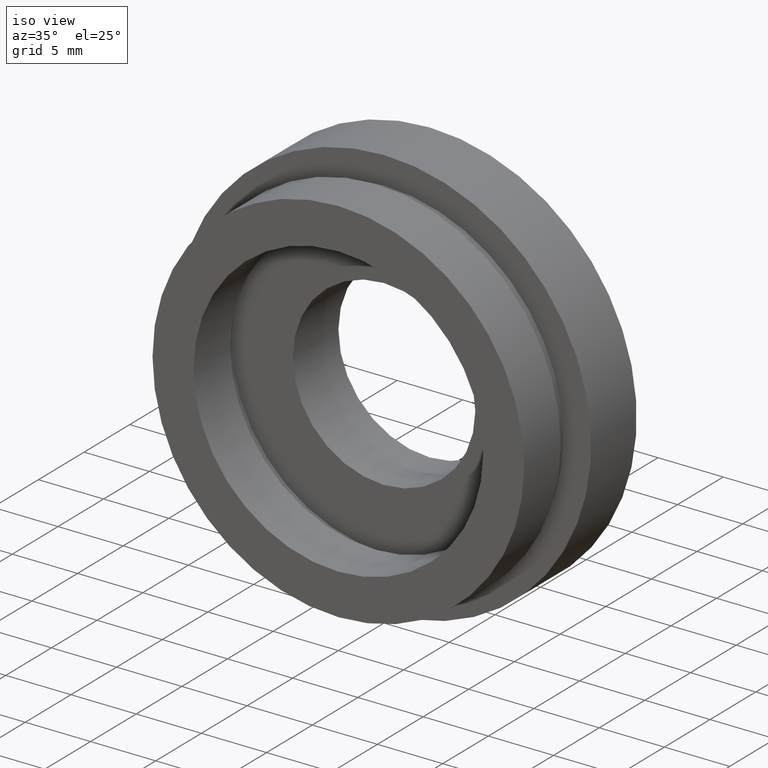
[diagram: clean part render]
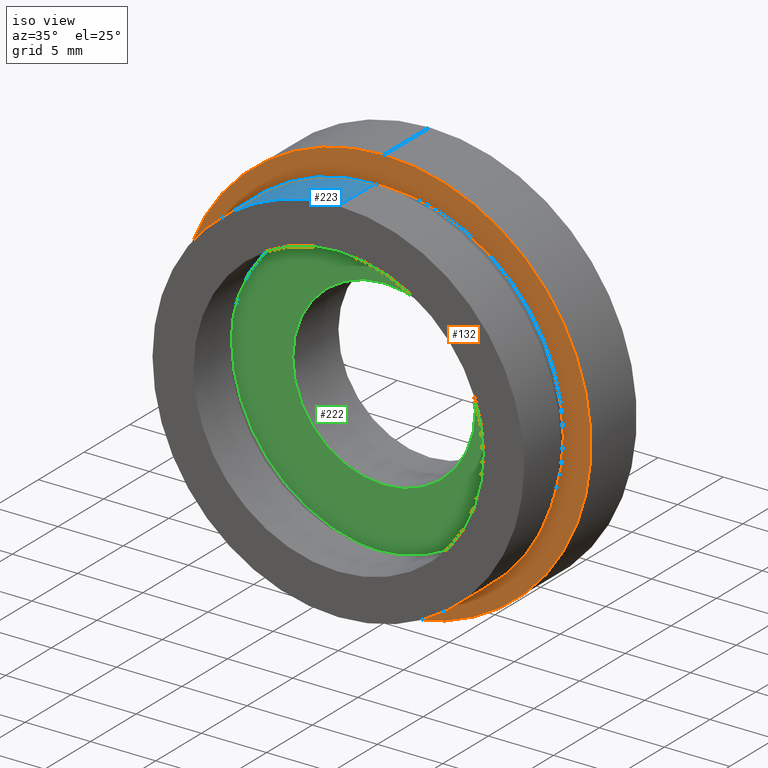
[diagram: same view with three faces highlighted in distinct colors, each labeled with its STEP entity id]
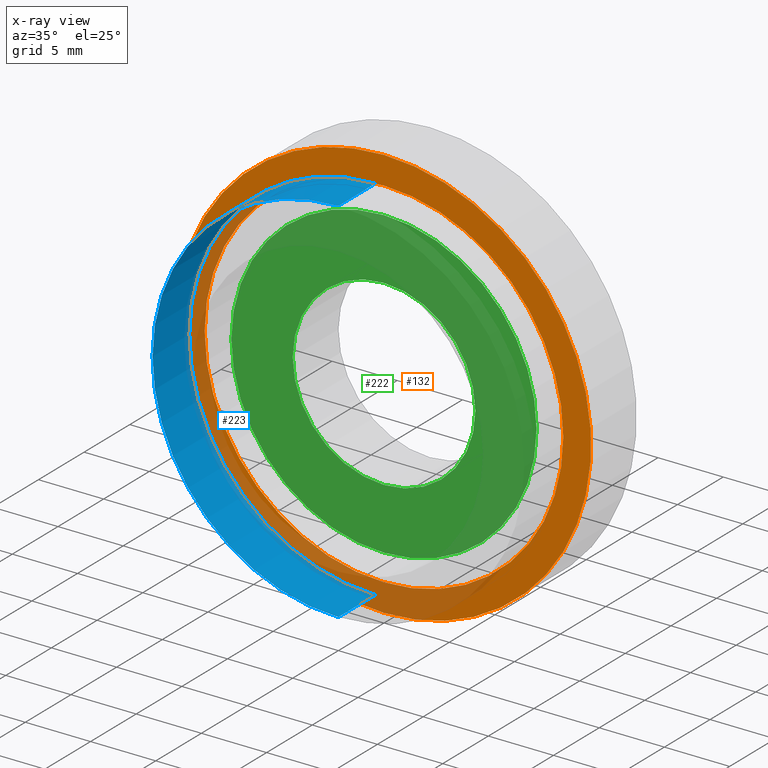
[diagram: x-ray of the same camera — body ghosted, the three highlighted faces saturated]
A machine part, iso view with three faces highlighted in distinct colors.
The next image is the same camera in x-ray (body ghosted, the three faces saturated) — at least one of them is partly hidden behind the body in this view.
Their STEP definitions:

[orange] entity #132 — the highlighted planar face has unit normal (-0, 1, 0).
#2 = DIRECTION ( 'NONE',  ( 0.0000000000000000000, 0.0000000000000000000, 1.000000000000000000 ) ) ;
#18 = VERTEX_POINT ( 'NONE', #535 ) ;
#59 = ORIENTED_EDGE ( 'NONE', *, *, #438, .F. ) ;
#83 = DIRECTION ( 'NONE',  ( -0.0000000000000000000, 1.000000000000000000, 0.0000000000000000000 ) ) ;
#84 = CIRCLE ( 'NONE', #307, 15.87500000000000000 ) ;
#89 = VERTEX_POINT ( 'NONE', #172 ) ;
#92 = DIRECTION ( 'NONE',  ( -0.0000000000000000000, 1.000000000000000000, -0.0000000000000000000 ) ) ;
#132 = ADVANCED_FACE ( 'NONE', ( #303, #352 ), #609, .F. ) ;
#147 = CARTESIAN_POINT ( 'NONE',  ( 0.0000000000000000000, 5.000000000000000900, 0.0000000000000000000 ) ) ;
#172 = CARTESIAN_POINT ( 'NONE',  ( 0.0000000000000000000, 5.000000000000000900, 15.87500000000000000 ) ) ;
#184 = DIRECTION ( 'NONE',  ( 0.0000000000000000000, 0.0000000000000000000, 1.000000000000000000 ) ) ;
#195 = EDGE_LOOP ( 'NONE', ( #59, #301 ) ) ;
#212 = AXIS2_PLACEMENT_3D ( 'NONE', #147, #92, #413 ) ;
#226 = VERTEX_POINT ( 'NONE', #342 ) ;
#231 = EDGE_CURVE ( 'NONE', #226, #468, #614, .T. ) ;
#237 = DIRECTION ( 'NONE',  ( -0.0000000000000000000, 1.000000000000000000, -0.0000000000000000000 ) ) ;
#250 = ORIENTED_EDGE ( 'NONE', *, *, #231, .T. ) ;
#288 = CARTESIAN_POINT ( 'NONE',  ( 1.683889348827610700E-015, 5.000000000000000900, -13.75000000000000000 ) ) ;
#301 = ORIENTED_EDGE ( 'NONE', *, *, #324, .F. ) ;
#303 = FACE_OUTER_BOUND ( 'NONE', #195, .T. ) ;
#307 = AXIS2_PLACEMENT_3D ( 'NONE', #459, #237, #572 ) ;
#315 = CIRCLE ( 'NONE', #364, 15.87500000000000000 ) ;
#324 = EDGE_CURVE ( 'NONE', #18, #89, #84, .T. ) ;
#342 = CARTESIAN_POINT ( 'NONE',  ( 0.0000000000000000000, 5.000000000000000900, 13.75000000000000000 ) ) ;
#352 = FACE_BOUND ( 'NONE', #482, .T. ) ;
#359 = AXIS2_PLACEMENT_3D ( 'NONE', #606, #83, #2 ) ;
#364 = AXIS2_PLACEMENT_3D ( 'NONE', #375, #538, #184 ) ;
#375 = CARTESIAN_POINT ( 'NONE',  ( 0.0000000000000000000, 5.000000000000000900, 0.0000000000000000000 ) ) ;
#413 = DIRECTION ( 'NONE',  ( 0.0000000000000000000, 0.0000000000000000000, 1.000000000000000000 ) ) ;
#438 = EDGE_CURVE ( 'NONE', #89, #18, #315, .T. ) ;
#439 = AXIS2_PLACEMENT_3D ( 'NONE', #555, #547, #599 ) ;
#459 = CARTESIAN_POINT ( 'NONE',  ( 0.0000000000000000000, 5.000000000000000900, 0.0000000000000000000 ) ) ;
#468 = VERTEX_POINT ( 'NONE', #288 ) ;
#482 = EDGE_LOOP ( 'NONE', ( #250, #503 ) ) ;
#503 = ORIENTED_EDGE ( 'NONE', *, *, #543, .T. ) ;
#535 = CARTESIAN_POINT ( 'NONE',  ( 1.944126793646423200E-015, 5.000000000000000900, -15.87500000000000000 ) ) ;
#538 = DIRECTION ( 'NONE',  ( -0.0000000000000000000, 1.000000000000000000, -0.0000000000000000000 ) ) ;
#543 = EDGE_CURVE ( 'NONE', #468, #226, #550, .T. ) ;
#547 = DIRECTION ( 'NONE',  ( -0.0000000000000000000, 1.000000000000000000, -0.0000000000000000000 ) ) ;
#550 = CIRCLE ( 'NONE', #212, 13.75000000000000000 ) ;
#555 = CARTESIAN_POINT ( 'NONE',  ( 0.0000000000000000000, 5.000000000000000900, 0.0000000000000000000 ) ) ;
#572 = DIRECTION ( 'NONE',  ( 0.0000000000000000000, 0.0000000000000000000, 1.000000000000000000 ) ) ;
#599 = DIRECTION ( 'NONE',  ( 0.0000000000000000000, 0.0000000000000000000, 1.000000000000000000 ) ) ;
#606 = CARTESIAN_POINT ( 'NONE',  ( 13.75000000000000000, 5.000000000000000000, 0.0000000000000000000 ) ) ;
#609 = PLANE ( 'NONE',  #359 ) ;
#614 = CIRCLE ( 'NONE', #439, 13.75000000000000000 ) ;

[blue] entity #223 — the highlighted cylindrical surface (partial cylindrical patch) has radius 14.25 mm, axis along (-0, 1, -0).
#12 = EDGE_LOOP ( 'NONE', ( #61, #411, #124, #458 ) ) ;
#25 = AXIS2_PLACEMENT_3D ( 'NONE', #330, #486, #313 ) ;
#44 = EDGE_CURVE ( 'NONE', #581, #563, #112, .T. ) ;
#61 = ORIENTED_EDGE ( 'NONE', *, *, #512, .F. ) ;
#63 = AXIS2_PLACEMENT_3D ( 'NONE', #227, #145, #408 ) ;
#71 = VERTEX_POINT ( 'NONE', #456 ) ;
#112 = CIRCLE ( 'NONE', #63, 14.25000000000000400 ) ;
#123 = DIRECTION ( 'NONE',  ( -0.0000000000000000000, 1.000000000000000000, -0.0000000000000000000 ) ) ;
#124 = ORIENTED_EDGE ( 'NONE', *, *, #532, .T. ) ;
#134 = CARTESIAN_POINT ( 'NONE',  ( 1.745121688784978600E-015, 0.0000000000000000000, -14.25000000000000400 ) ) ;
#139 = CARTESIAN_POINT ( 'NONE',  ( 0.0000000000000000000, 4.000000000000000000, 14.25000000000000400 ) ) ;
#145 = DIRECTION ( 'NONE',  ( -0.0000000000000000000, 1.000000000000000000, -0.0000000000000000000 ) ) ;
#168 = LINE ( 'NONE', #339, #560 ) ;
#191 = DIRECTION ( 'NONE',  ( -0.0000000000000000000, 1.000000000000000000, -0.0000000000000000000 ) ) ;
#220 = CARTESIAN_POINT ( 'NONE',  ( 0.0000000000000000000, 0.0000000000000000000, 14.25000000000000400 ) ) ;
#223 = ADVANCED_FACE ( 'NONE', ( #278 ), #422, .T. ) ;
#227 = CARTESIAN_POINT ( 'NONE',  ( 0.0000000000000000000, 0.0000000000000000000, 0.0000000000000000000 ) ) ;
#253 = CARTESIAN_POINT ( 'NONE',  ( 0.0000000000000000000, 17.41929831819392000, 0.0000000000000000000 ) ) ;
#278 = FACE_OUTER_BOUND ( 'NONE', #12, .T. ) ;
#291 = LINE ( 'NONE', #431, #328 ) ;
#309 = CIRCLE ( 'NONE', #25, 14.25000000000000400 ) ;
#313 = DIRECTION ( 'NONE',  ( 0.0000000000000000000, 0.0000000000000000000, 1.000000000000000000 ) ) ;
#328 = VECTOR ( 'NONE', #123, 1000.000000000000000 ) ;
#330 = CARTESIAN_POINT ( 'NONE',  ( 0.0000000000000000000, 4.000000000000000000, 0.0000000000000000000 ) ) ;
#339 = CARTESIAN_POINT ( 'NONE',  ( 1.745121688784978600E-015, 17.41929831819392000, -14.25000000000000400 ) ) ;
#378 = VERTEX_POINT ( 'NONE', #139 ) ;
#406 = AXIS2_PLACEMENT_3D ( 'NONE', #253, #471, #594 ) ;
#408 = DIRECTION ( 'NONE',  ( 0.0000000000000000000, 0.0000000000000000000, 1.000000000000000000 ) ) ;
#411 = ORIENTED_EDGE ( 'NONE', *, *, #44, .T. ) ;
#422 = CYLINDRICAL_SURFACE ( 'NONE', #406, 14.25000000000000400 ) ;
#431 = CARTESIAN_POINT ( 'NONE',  ( 0.0000000000000000000, 17.41929831819392000, 14.25000000000000400 ) ) ;
#456 = CARTESIAN_POINT ( 'NONE',  ( 1.745121688784978600E-015, 4.000000000000000000, -14.25000000000000400 ) ) ;
#458 = ORIENTED_EDGE ( 'NONE', *, *, #564, .F. ) ;
#471 = DIRECTION ( 'NONE',  ( -0.0000000000000000000, 1.000000000000000000, -0.0000000000000000000 ) ) ;
#486 = DIRECTION ( 'NONE',  ( -0.0000000000000000000, 1.000000000000000000, -0.0000000000000000000 ) ) ;
#512 = EDGE_CURVE ( 'NONE', #581, #71, #168, .T. ) ;
#532 = EDGE_CURVE ( 'NONE', #563, #378, #291, .T. ) ;
#560 = VECTOR ( 'NONE', #191, 1000.000000000000000 ) ;
#563 = VERTEX_POINT ( 'NONE', #220 ) ;
#564 = EDGE_CURVE ( 'NONE', #71, #378, #309, .T. ) ;
#581 = VERTEX_POINT ( 'NONE', #134 ) ;
#594 = DIRECTION ( 'NONE',  ( 0.0000000000000000000, 0.0000000000000000000, 1.000000000000000000 ) ) ;

[green] entity #222 — the highlighted planar face has unit normal (-0, 1, 0).
#20 = ORIENTED_EDGE ( 'NONE', *, *, #79, .T. ) ;
#37 = CARTESIAN_POINT ( 'NONE',  ( 11.70000000000000100, 4.999999999999999100, 0.0000000000000000000 ) ) ;
#56 = DIRECTION ( 'NONE',  ( 0.0000000000000000000, 0.0000000000000000000, 1.000000000000000000 ) ) ;
#69 = VERTEX_POINT ( 'NONE', #185 ) ;
#79 = EDGE_CURVE ( 'NONE', #611, #620, #485, .T. ) ;
#109 = DIRECTION ( 'NONE',  ( 0.0000000000000000000, 0.0000000000000000000, 1.000000000000000000 ) ) ;
#133 = EDGE_LOOP ( 'NONE', ( #483, #186 ) ) ;
#152 = FACE_OUTER_BOUND ( 'NONE', #133, .T. ) ;
#180 = CARTESIAN_POINT ( 'NONE',  ( 1.432836755002403300E-015, 5.000000000000000900, -11.70000000000000100 ) ) ;
#185 = CARTESIAN_POINT ( 'NONE',  ( 0.0000000000000000000, 5.000000000000000900, 11.70000000000000100 ) ) ;
#186 = ORIENTED_EDGE ( 'NONE', *, *, #417, .F. ) ;
#204 = CIRCLE ( 'NONE', #270, 11.70000000000000100 ) ;
#208 = DIRECTION ( 'NONE',  ( 0.0000000000000000000, 0.0000000000000000000, 1.000000000000000000 ) ) ;
#222 = ADVANCED_FACE ( 'NONE', ( #152, #496 ), #256, .F. ) ;
#236 = EDGE_CURVE ( 'NONE', #69, #473, #553, .T. ) ;
#244 = DIRECTION ( 'NONE',  ( -0.0000000000000000000, 1.000000000000000000, 0.0000000000000000000 ) ) ;
#256 = PLANE ( 'NONE',  #603 ) ;
#270 = AXIS2_PLACEMENT_3D ( 'NONE', #362, #369, #358 ) ;
#272 = CARTESIAN_POINT ( 'NONE',  ( 8.572527594031474200E-016, 4.999999999999999100, -7.000000000000001800 ) ) ;
#292 = DIRECTION ( 'NONE',  ( -0.0000000000000000000, 1.000000000000000000, -0.0000000000000000000 ) ) ;
#310 = CARTESIAN_POINT ( 'NONE',  ( 0.0000000000000000000, 4.999999999999999100, 0.0000000000000000000 ) ) ;
#311 = AXIS2_PLACEMENT_3D ( 'NONE', #310, #608, #208 ) ;
#358 = DIRECTION ( 'NONE',  ( 0.0000000000000000000, 0.0000000000000000000, 1.000000000000000000 ) ) ;
#362 = CARTESIAN_POINT ( 'NONE',  ( 0.0000000000000000000, 5.000000000000000900, 0.0000000000000000000 ) ) ;
#369 = DIRECTION ( 'NONE',  ( -0.0000000000000000000, 1.000000000000000000, -0.0000000000000000000 ) ) ;
#394 = DIRECTION ( 'NONE',  ( 0.0000000000000000000, 0.0000000000000000000, 1.000000000000000000 ) ) ;
#417 = EDGE_CURVE ( 'NONE', #473, #69, #204, .T. ) ;
#430 = CARTESIAN_POINT ( 'NONE',  ( 0.0000000000000000000, 4.999999999999999100, 0.0000000000000000000 ) ) ;
#433 = EDGE_LOOP ( 'NONE', ( #20, #593 ) ) ;
#450 = CARTESIAN_POINT ( 'NONE',  ( 0.0000000000000000000, 5.000000000000000900, 0.0000000000000000000 ) ) ;
#472 = AXIS2_PLACEMENT_3D ( 'NONE', #450, #602, #394 ) ;
#473 = VERTEX_POINT ( 'NONE', #180 ) ;
#483 = ORIENTED_EDGE ( 'NONE', *, *, #236, .F. ) ;
#485 = CIRCLE ( 'NONE', #311, 7.000000000000001800 ) ;
#496 = FACE_BOUND ( 'NONE', #433, .T. ) ;
#505 = CIRCLE ( 'NONE', #571, 7.000000000000001800 ) ;
#553 = CIRCLE ( 'NONE', #472, 11.70000000000000100 ) ;
#562 = CARTESIAN_POINT ( 'NONE',  ( 0.0000000000000000000, 4.999999999999999100, 7.000000000000001800 ) ) ;
#571 = AXIS2_PLACEMENT_3D ( 'NONE', #430, #292, #56 ) ;
#589 = EDGE_CURVE ( 'NONE', #620, #611, #505, .T. ) ;
#593 = ORIENTED_EDGE ( 'NONE', *, *, #589, .T. ) ;
#602 = DIRECTION ( 'NONE',  ( -0.0000000000000000000, 1.000000000000000000, -0.0000000000000000000 ) ) ;
#603 = AXIS2_PLACEMENT_3D ( 'NONE', #37, #244, #109 ) ;
#608 = DIRECTION ( 'NONE',  ( -0.0000000000000000000, 1.000000000000000000, -0.0000000000000000000 ) ) ;
#611 = VERTEX_POINT ( 'NONE', #562 ) ;
#620 = VERTEX_POINT ( 'NONE', #272 ) ;